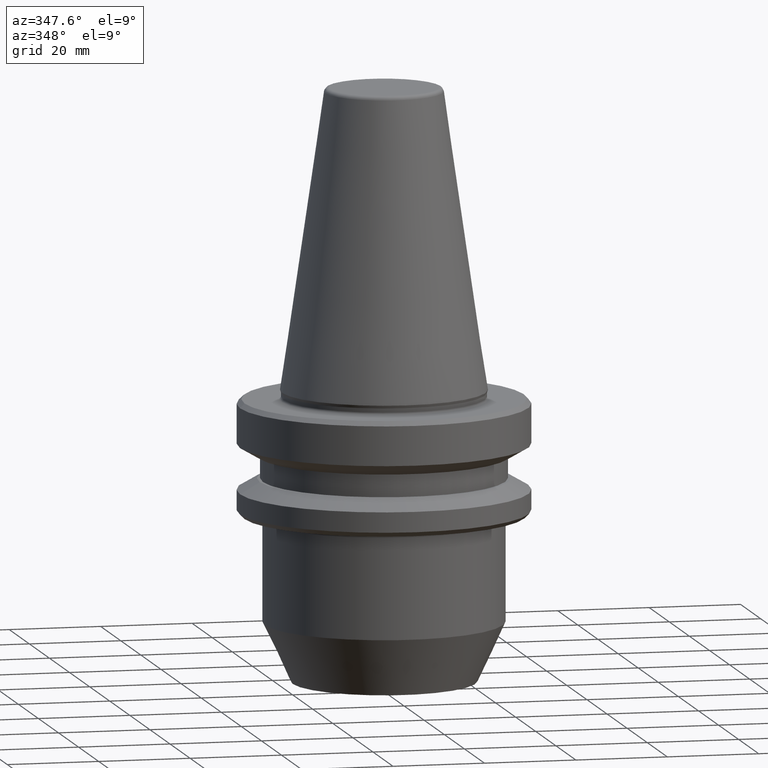
[diagram: clean part render]
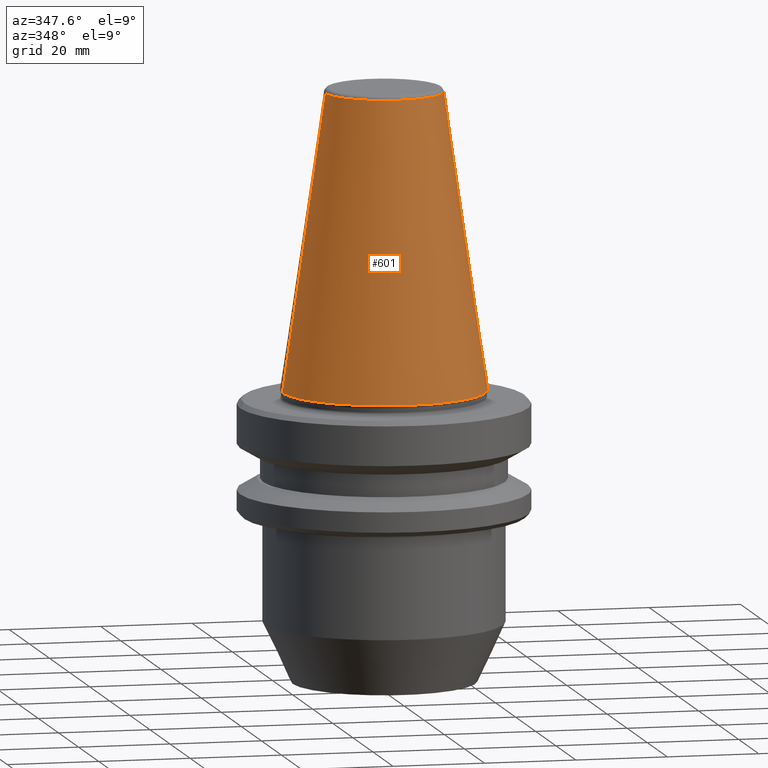
[diagram: same view with one face highlighted and labeled with its STEP entity id]
A machine part, auxiliary view. The second image highlights one B-rep face of the part: STEP entity #601.
In plain terms, the highlighted conical surface has half-angle 8.297 deg.
Its self-contained STEP definition (entity closure, byte-faithful):
#75 = EDGE_CURVE ( 'NONE', #824, #595, #947, .T. ) ;
#76 = CARTESIAN_POINT ( 'NONE',  ( 0.0000000000000000000, 0.0000000000000000000, 0.6887132116596417200 ) ) ;
#101 = EDGE_CURVE ( 'NONE', #595, #214, #882, .T. ) ;
#122 = CARTESIAN_POINT ( 'NONE',  ( 12.81220206925713600, 0.0000000000000000000, 65.23302140054848100 ) ) ;
#134 = AXIS2_PLACEMENT_3D ( 'NONE', #329, #570, #661 ) ;
#160 = EDGE_CURVE ( 'NONE', #824, #1003, #772, .T. ) ;
#214 = VERTEX_POINT ( 'NONE', #1047 ) ;
#223 = EDGE_CURVE ( 'NONE', #1003, #214, #388, .T. ) ;
#307 = ORIENTED_EDGE ( 'NONE', *, *, #160, .F. ) ;
#315 = AXIS2_PLACEMENT_3D ( 'NONE', #510, #584, #436 ) ;
#329 = CARTESIAN_POINT ( 'NONE',  ( 0.0000000000000000000, 0.0000000000000000000, 0.6887132116596417200 ) ) ;
#337 = AXIS2_PLACEMENT_3D ( 'NONE', #76, #654, #448 ) ;
#385 = VECTOR ( 'NONE', #580, 999.9999999999998900 ) ;
#386 = FACE_OUTER_BOUND ( 'NONE', #842, .T. ) ;
#388 = LINE ( 'NONE', #1023, #385 ) ;
#413 = CONICAL_SURFACE ( 'NONE', #134, 22.22499999999971700, 0.1448138077623186700 ) ;
#436 = DIRECTION ( 'NONE',  ( 1.000000000000000000, 0.0000000000000000000, 0.0000000000000000000 ) ) ;
#448 = DIRECTION ( 'NONE',  ( 1.000000000000000000, 0.0000000000000000000, 0.0000000000000000000 ) ) ;
#505 = ORIENTED_EDGE ( 'NONE', *, *, #101, .T. ) ;
#510 = CARTESIAN_POINT ( 'NONE',  ( 0.0000000000000000000, 0.0000000000000000000, 65.23302140054848100 ) ) ;
#570 = DIRECTION ( 'NONE',  ( 0.0000000000000000000, 0.0000000000000000000, -1.000000000000000000 ) ) ;
#580 = DIRECTION ( 'NONE',  ( 0.1443081888881784800, 1.767265616126594100E-017, -0.9895327920891828800 ) ) ;
#584 = DIRECTION ( 'NONE',  ( -0.0000000000000000000, -0.0000000000000000000, 1.000000000000000000 ) ) ;
#592 = DIRECTION ( 'NONE',  ( -0.1443081888881784800, 0.0000000000000000000, -0.9895327920891828800 ) ) ;
#595 = VERTEX_POINT ( 'NONE', #1002 ) ;
#601 = ADVANCED_FACE ( 'NONE', ( #386 ), #413, .T. ) ;
#654 = DIRECTION ( 'NONE',  ( -0.0000000000000000000, -0.0000000000000000000, 1.000000000000000000 ) ) ;
#655 = ORIENTED_EDGE ( 'NONE', *, *, #223, .F. ) ;
#661 = DIRECTION ( 'NONE',  ( -1.000000000000000000, 0.0000000000000000000, 0.0000000000000000000 ) ) ;
#731 = ORIENTED_EDGE ( 'NONE', *, *, #75, .T. ) ;
#772 = CIRCLE ( 'NONE', #315, 12.81220206925715000 ) ;
#824 = VERTEX_POINT ( 'NONE', #847 ) ;
#840 = CARTESIAN_POINT ( 'NONE',  ( -22.22499999999971700, 0.0000000000000000000, 0.6887132116596417200 ) ) ;
#842 = EDGE_LOOP ( 'NONE', ( #655, #307, #731, #505 ) ) ;
#847 = CARTESIAN_POINT ( 'NONE',  ( -12.81220206925713600, 1.569042225414484800E-015, 65.23302140054848100 ) ) ;
#882 = CIRCLE ( 'NONE', #337, 22.22499999999971700 ) ;
#916 = VECTOR ( 'NONE', #592, 999.9999999999998900 ) ;
#947 = LINE ( 'NONE', #840, #916 ) ;
#1002 = CARTESIAN_POINT ( 'NONE',  ( -22.22499999999971700, 2.721777511104957700E-015, 0.6887132116596417200 ) ) ;
#1003 = VERTEX_POINT ( 'NONE', #122 ) ;
#1023 = CARTESIAN_POINT ( 'NONE',  ( 22.22499999999971700, 2.721777511104957700E-015, 0.6887132116596417200 ) ) ;
#1047 = CARTESIAN_POINT ( 'NONE',  ( 22.22499999999971700, 0.0000000000000000000, 0.6887132116596417200 ) ) ;